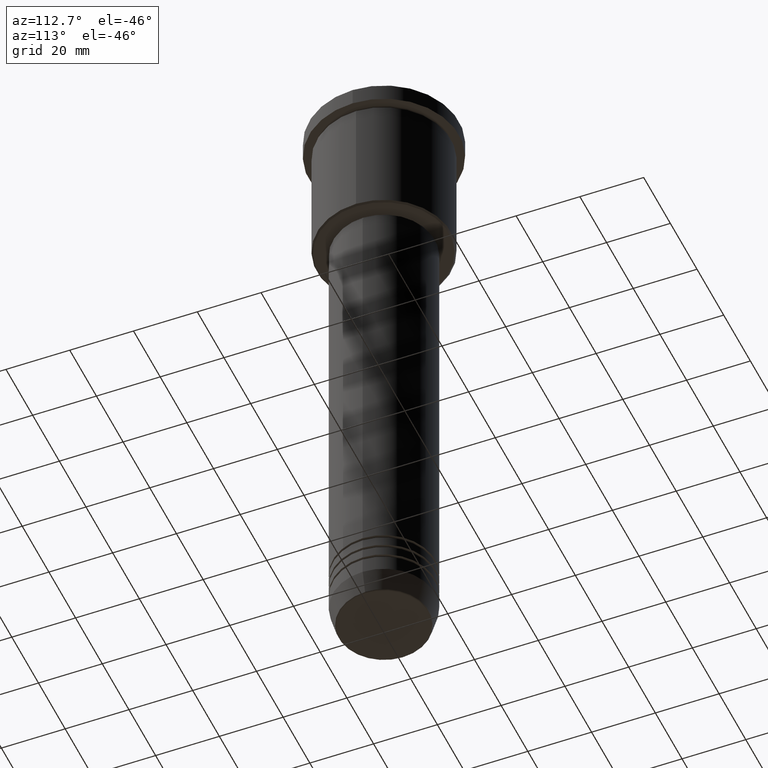
[diagram: clean part render]
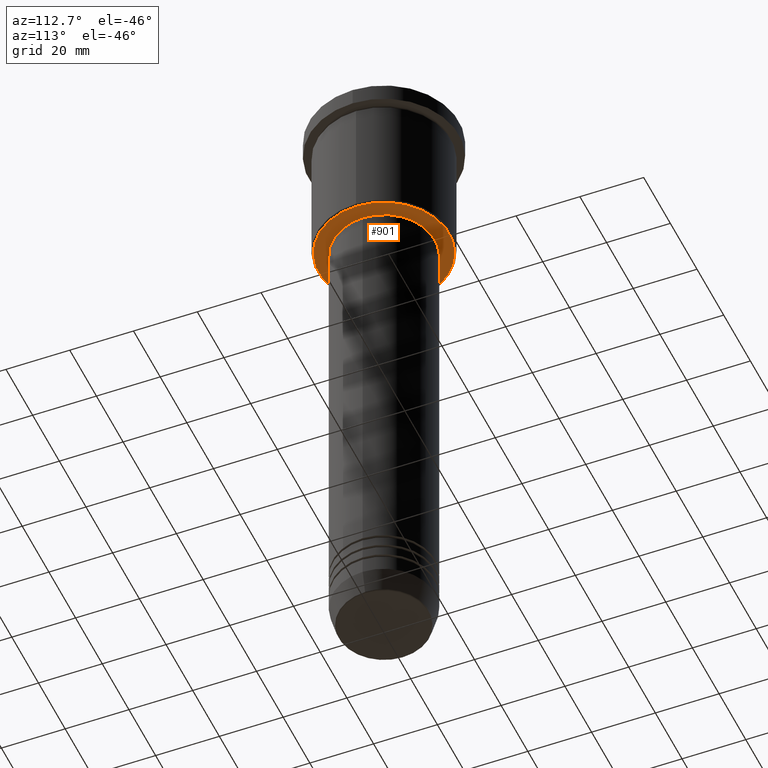
[diagram: same view with one face highlighted and labeled with its STEP entity id]
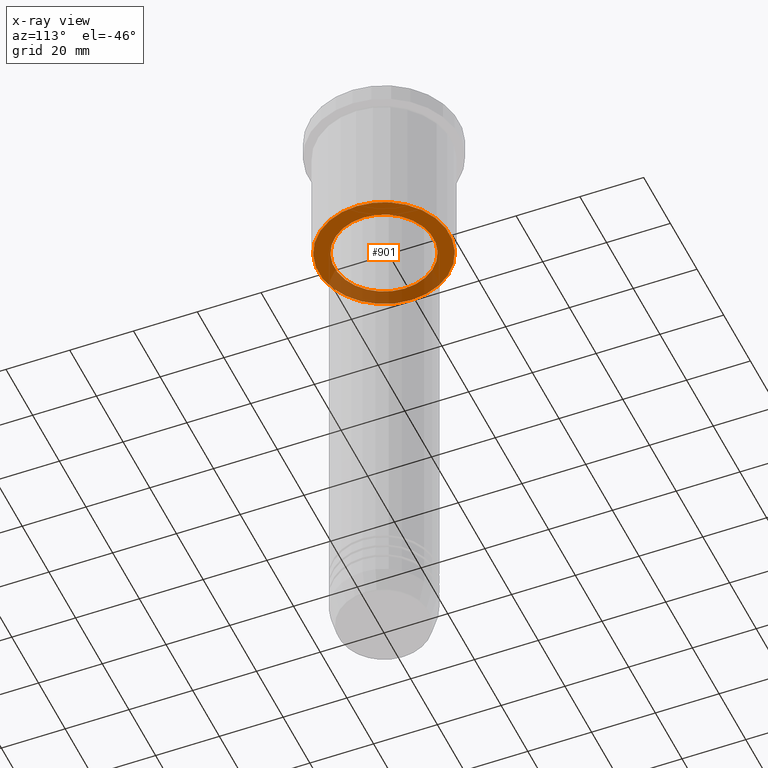
[diagram: x-ray of the same camera — body ghosted, the highlighted face saturated]
A machine part, auxiliary view. The second image highlights one B-rep face of the part: STEP entity #901.
The next image is the same camera in x-ray: the body ghosted, the highlighted face saturated — about 32% of this face is hidden behind the body in this view.
In plain terms, the highlighted planar face has unit normal (0, 0, -1).
Its self-contained STEP definition (entity closure, byte-faithful):
#18 = CARTESIAN_POINT ( 'NONE',  ( 0.000000000000000000, 0.000000000000000000, -46.00000000000002132 ) ) ;
#24 = ORIENTED_EDGE ( 'NONE', *, *, #959, .T. ) ;
#26 = DIRECTION ( 'NONE',  ( 1.000000000000000000, 0.000000000000000000, 0.000000000000000000 ) ) ;
#68 = DIRECTION ( 'NONE',  ( -1.000000000000000000, 0.000000000000000000, -0.000000000000000000 ) ) ;
#85 = DIRECTION ( 'NONE',  ( 0.000000000000000000, 0.000000000000000000, -1.000000000000000000 ) ) ;
#89 = PLANE ( 'NONE',  #382 ) ;
#164 = VERTEX_POINT ( 'NONE', #1170 ) ;
#191 = DIRECTION ( 'NONE',  ( -1.000000000000000000, 0.000000000000000000, 0.000000000000000000 ) ) ;
#233 = EDGE_CURVE ( 'NONE', #164, #250, #725, .T. ) ;
#242 = CIRCLE ( 'NONE', #539, 20.49999999999998934 ) ;
#243 = ORIENTED_EDGE ( 'NONE', *, *, #1041, .T. ) ;
#250 = VERTEX_POINT ( 'NONE', #667 ) ;
#265 = CARTESIAN_POINT ( 'NONE',  ( 0.000000000000000000, 0.000000000000000000, -46.00000000000002132 ) ) ;
#319 = CIRCLE ( 'NONE', #335, 20.49999999999998934 ) ;
#335 = AXIS2_PLACEMENT_3D ( 'NONE', #265, #446, #542 ) ;
#338 = CARTESIAN_POINT ( 'NONE',  ( 20.49999999999998934, 0.000000000000000000, -46.00000000000002132 ) ) ;
#382 = AXIS2_PLACEMENT_3D ( 'NONE', #645, #85, #68 ) ;
#396 = ORIENTED_EDGE ( 'NONE', *, *, #987, .T. ) ;
#401 = EDGE_LOOP ( 'NONE', ( #396, #1120 ) ) ;
#414 = VERTEX_POINT ( 'NONE', #849 ) ;
#446 = DIRECTION ( 'NONE',  ( 0.000000000000000000, 0.000000000000000000, -1.000000000000000000 ) ) ;
#532 = DIRECTION ( 'NONE',  ( -0.000000000000000000, -0.000000000000000000, 1.000000000000000000 ) ) ;
#539 = AXIS2_PLACEMENT_3D ( 'NONE', #1004, #633, #191 ) ;
#542 = DIRECTION ( 'NONE',  ( -1.000000000000000000, 0.000000000000000000, 0.000000000000000000 ) ) ;
#589 = VERTEX_POINT ( 'NONE', #338 ) ;
#633 = DIRECTION ( 'NONE',  ( 0.000000000000000000, 0.000000000000000000, -1.000000000000000000 ) ) ;
#645 = CARTESIAN_POINT ( 'NONE',  ( 0.000000000000000000, 21.00000000000000000, -46.00000000000002132 ) ) ;
#667 = CARTESIAN_POINT ( 'NONE',  ( 15.50000000000000000, 0.000000000000000000, -46.00000000000002132 ) ) ;
#725 = CIRCLE ( 'NONE', #936, 15.50000000000000000 ) ;
#805 = DIRECTION ( 'NONE',  ( 1.000000000000000000, 0.000000000000000000, 0.000000000000000000 ) ) ;
#809 = CARTESIAN_POINT ( 'NONE',  ( 0.000000000000000000, 0.000000000000000000, -46.00000000000002132 ) ) ;
#849 = CARTESIAN_POINT ( 'NONE',  ( -20.49999999999998934, 2.541142108230757480E-15, -46.00000000000002132 ) ) ;
#853 = EDGE_LOOP ( 'NONE', ( #24, #243 ) ) ;
#894 = FACE_BOUND ( 'NONE', #401, .T. ) ;
#901 = ADVANCED_FACE ( 'NONE', ( #997, #894 ), #89, .T. ) ;
#918 = CIRCLE ( 'NONE', #956, 15.50000000000000000 ) ;
#936 = AXIS2_PLACEMENT_3D ( 'NONE', #18, #939, #26 ) ;
#939 = DIRECTION ( 'NONE',  ( -0.000000000000000000, -0.000000000000000000, 1.000000000000000000 ) ) ;
#956 = AXIS2_PLACEMENT_3D ( 'NONE', #809, #532, #805 ) ;
#959 = EDGE_CURVE ( 'NONE', #589, #414, #319, .T. ) ;
#987 = EDGE_CURVE ( 'NONE', #250, #164, #918, .T. ) ;
#997 = FACE_OUTER_BOUND ( 'NONE', #853, .T. ) ;
#1004 = CARTESIAN_POINT ( 'NONE',  ( 0.000000000000000000, 0.000000000000000000, -46.00000000000002132 ) ) ;
#1041 = EDGE_CURVE ( 'NONE', #414, #589, #242, .T. ) ;
#1120 = ORIENTED_EDGE ( 'NONE', *, *, #233, .T. ) ;
#1170 = CARTESIAN_POINT ( 'NONE',  ( -15.50000000000000000, 1.898202538678397557E-15, -46.00000000000002132 ) ) ;